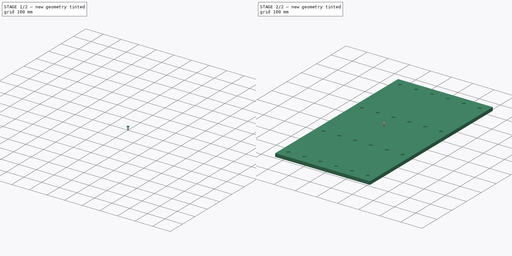
[diagram: build sequence overview — one tinted view per stage of 2, left to right]
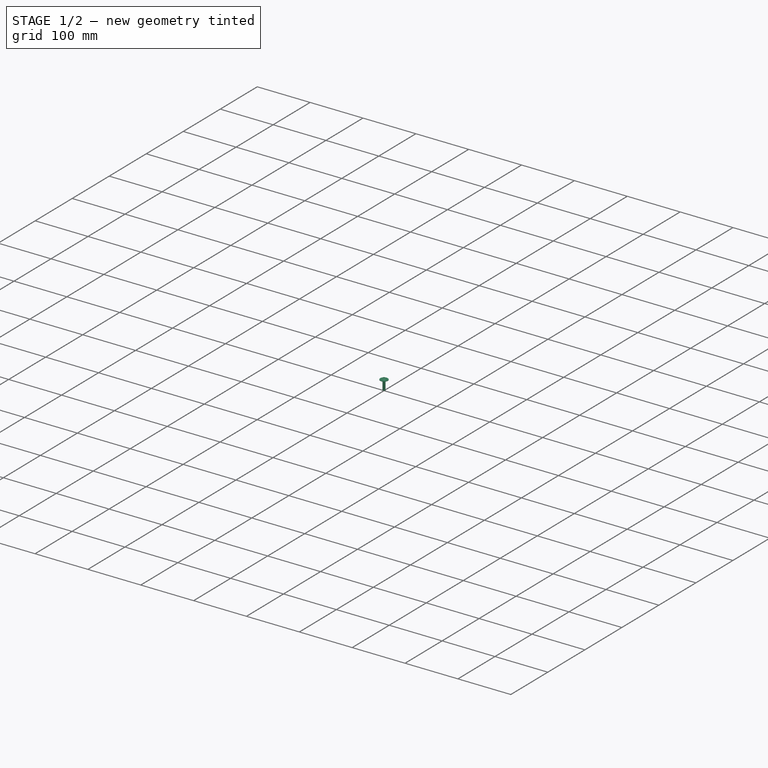
[diagram: stage 1 of 2 — iso view after this stage's code; geometry added in this stage tinted green]
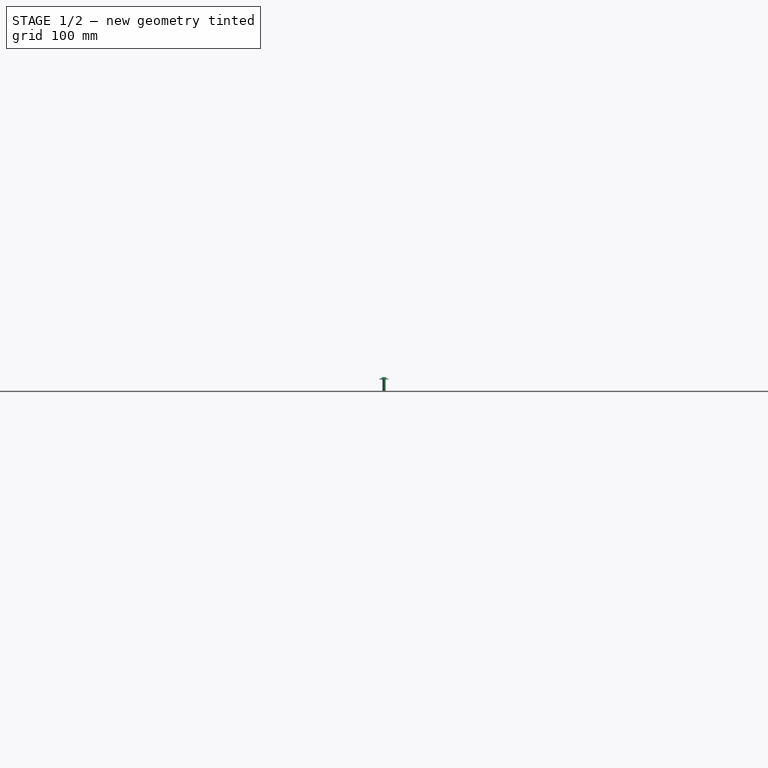
[diagram: stage 1 of 2 — front view after this stage's code; geometry added in this stage tinted green]
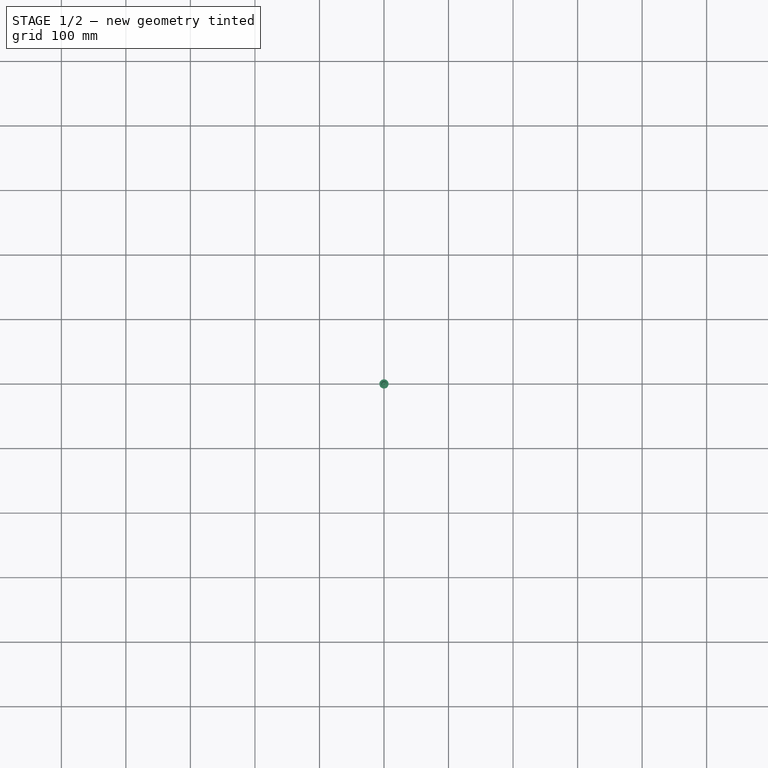
[diagram: stage 1 of 2 — top view after this stage's code; geometry added in this stage tinted green]
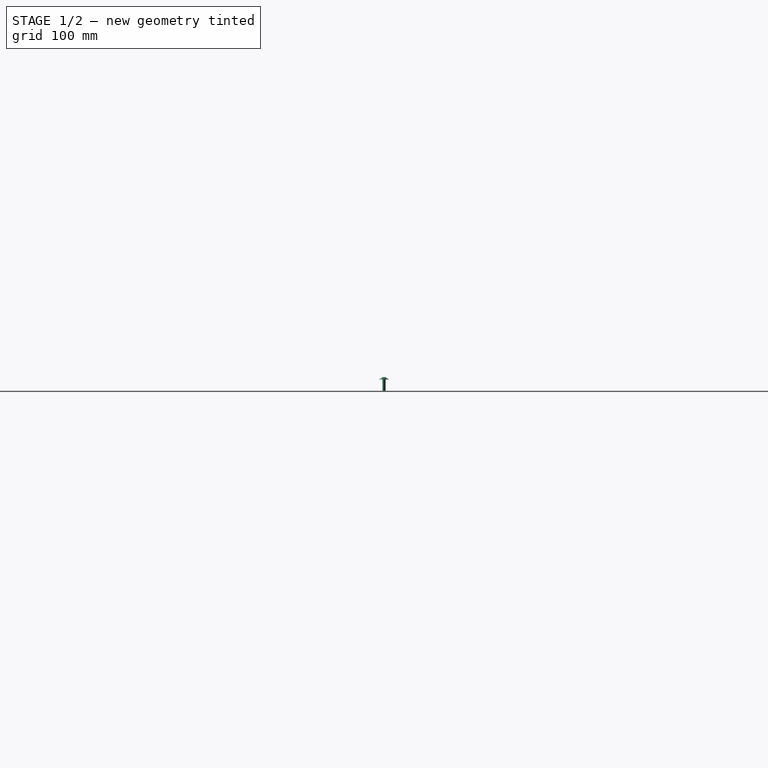
[diagram: stage 1 of 2 — right view after this stage's code; geometry added in this stage tinted green]
FCSTD DOCUMENT  (FreeCAD 2021.717R24301 +3842 (Git))
Label: Table
License: Creative Commons Attribution
LicenseURL: http://creativecommons.org/licenses/by/4.0/
objects: App::FeaturePython×83, Part::FeaturePython×58, App::LinkElement×24, Sketcher::SketchObject×2, App::Link×2, PartDesign::Pad×1, PartDesign::Hole×1, PartDesign::Body×1, App::DocumentObjectGroup×1
note: 65 computed .brp shape members not serialized (recipe doc carries the construction recipe); baked Part::Feature solids carry a one-line shape summary decoded from their .brp

FEATURE [PartDesign::Body] Body  label="Table plate PP"
  AutoGroupSolids = false
  ExportMode = 0
  Group = -> [Sketch,Pad,Sketch001,Hole]
  Origin = -> Origin
  Tip = -> Hole
  _ExportChildren = -> [Pad,Hole]
  _GroupVersion = 1
FEATURE [Part::FeaturePython] Screw  label="#10x3/4in-Screw"  # Fasteners workbench fastener (typed FeaturePython)
  Placement = pos=(0,0,47) rot=(0,0,1;0rad)
  diameter = 9
  invert = false
  length = 5
  lengthCustom = 19.05
  matchOuter = false
  offset = 0
  thread = false
  type = 4
FEATURE [Part::FeaturePython] Washer  label="#10-Washer"  # Fasteners workbench fastener (typed FeaturePython)
  Placement = pos=(0,0,45.984) rot=(0,0,1;0rad)
  diameter = 9
  invert = false
  matchOuter = false
  offset = 0
  type = 1
FEATURE [Part::FeaturePython] Parts001  # WARN: FeaturePython — macro-defined, semantics opaque (R4)
  Group = -> [Screw,Washer]
  GroupMode = 0
  _LinkVersion = 1
FEATURE [App::LinkElement] Link_i0
  LinkPlacement = pos=(-187.5,-376.9,-35.284) rot=(0,0,1;0rad)
  LinkedObject = -> Assembly001
  Placement = pos=(-187.5,-376.9,-35.284) rot=(0,0,1;0rad)
  _LinkVersion = 1
FEATURE [App::LinkElement] Link_i1
  LinkPlacement = pos=(-112.5,-376.9,-35.284) rot=(0,0,1;0rad)
  LinkedObject = -> Assembly001
  Placement = pos=(-112.5,-376.9,-35.284) rot=(0,0,1;0rad)
  _LinkVersion = 1
FEATURE [App::LinkElement] Link_i2
  LinkPlacement = pos=(-37.5,-376.9,-35.284) rot=(0,0,1;0rad)
  LinkedObject = -> Assembly001
  Placement = pos=(-37.5,-376.9,-35.284) rot=(0,0,1;0rad)
  _LinkVersion = 1
FEATURE [App::LinkElement] Link_i3
  LinkPlacement = pos=(37.5,-376.9,-35.284) rot=(0,0,1;0rad)
  LinkedObject = -> Assembly001
  Placement = pos=(37.5,-376.9,-35.284) rot=(0,0,1;0rad)
  _LinkVersion = 1
FEATURE [App::LinkElement] Link_i4
  LinkPlacement = pos=(112.5,-376.9,-35.284) rot=(0,0,1;0rad)
  LinkedObject = -> Assembly001
  Placement = pos=(112.5,-376.9,-35.284) rot=(0,0,1;0rad)
  _LinkVersion = 1
FEATURE [App::LinkElement] Link_i5
  LinkPlacement = pos=(187.5,-376.9,-35.284) rot=(0,0,1;0rad)
  LinkedObject = -> Assembly001
  Placement = pos=(187.5,-376.9,-35.284) rot=(0,0,1;0rad)
  _LinkVersion = 1
FEATURE [App::LinkElement] Link_i6
  LinkPlacement = pos=(-187.5,-142.57,-35.284) rot=(0,0,1;0rad)
  LinkedObject = -> Assembly001
  Placement = pos=(-187.5,-142.57,-35.284) rot=(0,0,1;0rad)
  _LinkVersion = 1
FEATURE [App::LinkElement] Link_i7
  LinkPlacement = pos=(-112.5,-142.57,-35.284) rot=(0,0,1;0rad)
  LinkedObject = -> Assembly001
  Placement = pos=(-112.5,-142.57,-35.284) rot=(0,0,1;0rad)
  _LinkVersion = 1
FEATURE [App::LinkElement] Link_i8
  LinkPlacement = pos=(-37.5,-142.57,-35.284) rot=(0,0,1;0rad)
  LinkedObject = -> Assembly001
  Placement = pos=(-37.5,-142.57,-35.284) rot=(0,0,1;0rad)
  _LinkVersion = 1
FEATURE [App::LinkElement] Link_i9
  LinkPlacement = pos=(37.5,-142.57,-35.284) rot=(0,0,1;0rad)
  LinkedObject = -> Assembly001
  Placement = pos=(37.5,-142.57,-35.284) rot=(0,0,1;0rad)
  _LinkVersion = 1
FEATURE [App::LinkElement] Link_i10
  LinkPlacement = pos=(112.5,-142.57,-35.284) rot=(0,0,1;0rad)
  LinkedObject = -> Assembly001
  Placement = pos=(112.5,-142.57,-35.284) rot=(0,0,1;0rad)
  _LinkVersion = 1
FEATURE [App::LinkElement] Link_i11
  LinkPlacement = pos=(187.5,-142.57,-35.284) rot=(0,0,1;0rad)
  LinkedObject = -> Assembly001
  Placement = pos=(187.5,-142.57,-35.284) rot=(0,0,1;0rad)
  _LinkVersion = 1
FEATURE [App::LinkElement] Link_i12
  LinkPlacement = pos=(-187.5,117.165,-35.284) rot=(0,0,1;0rad)
  LinkedObject = -> Assembly001
  Placement = pos=(-187.5,117.165,-35.284) rot=(0,0,1;0rad)
  _LinkVersion = 1
FEATURE [App::LinkElement] Link_i13
  LinkPlacement = pos=(-112.5,117.165,-35.284) rot=(0,0,1;0rad)
  LinkedObject = -> Assembly001
  Placement = pos=(-112.5,117.165,-35.284) rot=(0,0,1;0rad)
  _LinkVersion = 1
FEATURE [App::LinkElement] Link_i14
  LinkPlacement = pos=(-37.5,117.165,-35.284) rot=(0,0,1;0rad)
  LinkedObject = -> Assembly001
  Placement = pos=(-37.5,117.165,-35.284) rot=(0,0,1;0rad)
  _LinkVersion = 1
FEATURE [App::LinkElement] Link_i15
  LinkPlacement = pos=(37.5,117.165,-35.284) rot=(0,0,1;0rad)
  LinkedObject = -> Assembly001
  Placement = pos=(37.5,117.165,-35.284) rot=(0,0,1;0rad)
  _LinkVersion = 1
FEATURE [App::LinkElement] Link_i16
  LinkPlacement = pos=(112.5,117.165,-35.284) rot=(0,0,1;0rad)
  LinkedObject = -> Assembly001
  Placement = pos=(112.5,117.165,-35.284) rot=(0,0,1;0rad)
  _LinkVersion = 1
FEATURE [App::LinkElement] Link_i17
  LinkPlacement = pos=(187.5,117.165,-35.284) rot=(0,0,1;0rad)
  LinkedObject = -> Assembly001
  Placement = pos=(187.5,117.165,-35.284) rot=(0,0,1;0rad)
  _LinkVersion = 1
FEATURE [App::LinkElement] Link_i18
  LinkPlacement = pos=(-187.5,376.9,-35.284) rot=(0,0,1;0rad)
  LinkedObject = -> Assembly001
  Placement = pos=(-187.5,376.9,-35.284) rot=(0,0,1;0rad)
  _LinkVersion = 1
FEATURE [App::LinkElement] Link_i19
  LinkPlacement = pos=(-112.5,376.9,-35.284) rot=(0,0,1;0rad)
  LinkedObject = -> Assembly001
  Placement = pos=(-112.5,376.9,-35.284) rot=(0,0,1;0rad)
  _LinkVersion = 1
FEATURE [App::LinkElement] Link_i20
  LinkPlacement = pos=(-37.5,376.9,-35.284) rot=(0,0,1;0rad)
  LinkedObject = -> Assembly001
  Placement = pos=(-37.5,376.9,-35.284) rot=(0,0,1;0rad)
  _LinkVersion = 1
FEATURE [App::LinkElement] Link_i21
  LinkPlacement = pos=(37.5,376.9,-35.284) rot=(0,0,1;0rad)
  LinkedObject = -> Assembly001
  Placement = pos=(37.5,376.9,-35.284) rot=(0,0,1;0rad)
  _LinkVersion = 1
FEATURE [App::LinkElement] Link_i22
  LinkPlacement = pos=(112.5,376.9,-35.284) rot=(0,0,1;0rad)
  LinkedObject = -> Assembly001
  Placement = pos=(112.5,376.9,-35.284) rot=(0,0,1;0rad)
  _LinkVersion = 1
FEATURE [App::LinkElement] Link_i23
  LinkPlacement = pos=(187.5,376.9,-35.284) rot=(0,0,1;0rad)
  LinkedObject = -> Assembly001
  Placement = pos=(187.5,376.9,-35.284) rot=(0,0,1;0rad)
  _LinkVersion = 1
FEATURE [App::Link] Link  label="10x3/4 screw and washer 24 ct"
  AutoLinkLabel = true
  AutoPlacement = true
  ElementCount = 24
  ElementList = -> [Link_i0,Link_i1,Link_i2,Link_i3,Link_i4,Link_i5,Link_i6,Link_i7,Link_i8,Link_i9,Link_i10,Link_i11,Link_i12,Link_i13,Link_i14,Link_i15,Link_i16,Link_i17,Link_i18,Link_i19,Link_i20,Link_i21,Link_i22,Link_i23]
  LinkedObject = -> Assembly001
  SyncGroupVisibility = false
  _LinkVersion = 1
FEATURE [Part::FeaturePython] Parts  # WARN: FeaturePython — macro-defined, semantics opaque (R4)
  Group = -> [Link001,Link]
  GroupMode = 0
  _LinkVersion = 1
FEATURE [Part::FeaturePython] Assembly  label="PP Table Assembly"  # WARN: FeaturePython — macro-defined, semantics opaque (R4)
  AutoRelax = true
  BuildShape = 0
  Freeze = false
  Group = -> [Constraints,Elements,Parts]
  Verbose = false
  _LinkVersion = 1
  _SolverType = 1
  _Version = 1
FEATURE [App::FeaturePython] Constraints  # WARN: FeaturePython — macro-defined, semantics opaque (R4)
  Group = -> [Constraint,Constraint003,Constraint004,Constraint005,Constraint006,Constraint007,Constraint008,Constraint009,Constraint010,Constraint011,Constraint012,Constraint013,Constraint014,Constraint015,Constraint016,Constraint017,Constraint018,Constraint019,Constraint020,Constraint021,Constraint022,Constraint023,Constraint024,Constraint025,Constraint026]
  _LinkVersion = 1
  _Version = 1
FEATURE [App::FeaturePython] Elements  # WARN: FeaturePython — macro-defined, semantics opaque (R4)
  Group = -> [Element,_Element002,_Element003,_Element004,_Element005,_Element006,_Element007,_Element008,_Element009,_Element010,_Element011,_Element012,_Element013,_Element014,_Element015,_Element016,_Element017,_Element018,_Element019,_Element020,_Element021,_Element022,_Element023,_Element024,_Element025,_Element026,_Element027,_Element028,_Element029,_Element030,_Element031,_Element032,_Element033,+16 more]
  _LinkVersion = 1
FEATURE [Part::FeaturePython] Element  label="frame mate"  # link proxy (typed FeaturePython)
  Detach = false
  LinkTransform = true
  LinkedObject = -> Link001 [Hole.Edge12]
  _LinkVersion = 1
  _Parent = -> Elements
FEATURE [App::FeaturePython] Constraint  label="Locked"  # WARN: FeaturePython — macro-defined, semantics opaque (R4)
  Disabled = false
  Group = -> [ElementLink]
  _ConstraintType = 0
  _LinkVersion = 1
  _Parent = -> Constraints
FEATURE [App::FeaturePython] ElementLink  label="frame mate"  # link proxy (typed FeaturePython)
  LinkTransform = true
  LinkedObject = -> Element
  _LinkVersion = 1
  _Parent = -> Constraint
FEATURE [App::DocumentObjectGroup] Group  label="Components"
  ExportMode = 1
  Group = -> [Body,Assembly001]
  _GroupVersion = 1
FEATURE [Part::FeaturePython] Assembly001  label="10x3/4 screw and washer Assembly"  # WARN: FeaturePython — macro-defined, semantics opaque (R4)
  AutoRelax = true
  BuildShape = 0
  Freeze = false
  Group = -> [Constraints001,Elements001,Parts001]
  Verbose = false
  _LinkVersion = 1
  _SolverType = 1
  _Version = 1
FEATURE [App::FeaturePython] Constraints001  # WARN: FeaturePython — macro-defined, semantics opaque (R4)
  Group = -> [Constraint001,Constraint002]
  _LinkVersion = 1
  _Version = 1
FEATURE [App::FeaturePython] Elements001  # WARN: FeaturePython — macro-defined, semantics opaque (R4)
  Group = -> [_Element,_Element001,Element001]
  _LinkVersion = 1
FEATURE [App::FeaturePython] Constraint001  label="Locked001"  # WARN: FeaturePython — macro-defined, semantics opaque (R4)
  Disabled = false
  Group = -> [ElementLink001]
  _ConstraintType = 0
  _LinkVersion = 1
  _Parent = -> Constraints001
FEATURE [App::FeaturePython] ElementLink001  label="_Element"  # link proxy (typed FeaturePython)
  LinkTransform = true
  LinkedObject = -> _Element
  _LinkVersion = 1
  _Parent = -> Constraint001
FEATURE [Part::FeaturePython] _Element  # link proxy (typed FeaturePython)
  Detach = false
  LinkTransform = true
  LinkedObject = -> Screw [Edge4]
  _LinkVersion = 1
  _Parent = -> Elements001
FEATURE [App::FeaturePython] Constraint002  label="Attachment"  # WARN: FeaturePython — macro-defined, semantics opaque (R4)
  Cascade = false
  Disabled = false
  Group = -> [ElementLink002,ElementLink003]
  Multiply = false
  _ConstraintType = 45
  _LinkVersion = 1
  _Parent = -> Constraints001
FEATURE [App::FeaturePython] ElementLink002  label="_Element001"  # link proxy (typed FeaturePython)
  LinkTransform = true
  LinkedObject = -> _Element001
  _LinkVersion = 1
  _Parent = -> Constraint002
FEATURE [Part::FeaturePython] _Element001  # link proxy (typed FeaturePython)
  Detach = false
  LinkTransform = true
  LinkedObject = -> Washer [Edge1]
  _LinkVersion = 1
  _Parent = -> Elements001
FEATURE [App::FeaturePython] ElementLink003  label="_Element"  # link proxy (typed FeaturePython)
  LinkTransform = true
  LinkedObject = -> _Element
  _LinkVersion = 1
  _Parent = -> Constraint002
FEATURE [Part::FeaturePython] Element001  label="mate"  # link proxy (typed FeaturePython)
  Detach = false
  LinkTransform = true
  LinkedObject = -> Washer [Edge5]
  _LinkVersion = 1
  _Parent = -> Elements001
FEATURE [App::FeaturePython] Constraint003  label="Attachment001"  # WARN: FeaturePython — macro-defined, semantics opaque (R4)
  Cascade = false
  Disabled = false
  Group = -> [ElementLink004,ElementLink005]
  Multiply = false
  _ConstraintType = 45
  _LinkVersion = 1
  _Parent = -> Constraints
FEATURE [App::FeaturePython] ElementLink004  label="_Element002"  # link proxy (typed FeaturePython)
  LinkTransform = true
  LinkedObject = -> _Element002
  _LinkVersion = 1
  _Parent = -> Constraint003
FEATURE [Part::FeaturePython] _Element002  # link proxy (typed FeaturePython)
  Detach = false
  LinkTransform = true
  LinkedObject = -> Link [Link_i0.1.$mate.]
  _LinkVersion = 1
  _Parent = -> Elements
FEATURE [App::FeaturePython] ElementLink005  label="_Element003"  # link proxy (typed FeaturePython)
  LinkTransform = true
  LinkedObject = -> _Element003
  _LinkVersion = 1
  _Parent = -> Constraint003
FEATURE [Part::FeaturePython] _Element003  # link proxy (typed FeaturePython)
  Detach = false
  LinkTransform = true
  LinkedObject = -> Link001 [Hole.Edge109]
  _LinkVersion = 1
  _Parent = -> Elements
FEATURE [App::FeaturePython] Constraint004  label="Attachment002"  # WARN: FeaturePython — macro-defined, semantics opaque (R4)
  Cascade = false
  Disabled = false
  Group = -> [ElementLink006,ElementLink007]
  Multiply = false
  _ConstraintType = 45
  _LinkVersion = 1
  _Parent = -> Constraints
FEATURE [App::FeaturePython] ElementLink006  label="_Element004"  # link proxy (typed FeaturePython)
  LinkTransform = true
  LinkedObject = -> _Element004
  _LinkVersion = 1
  _Parent = -> Constraint004
FEATURE [Part::FeaturePython] _Element004  # link proxy (typed FeaturePython)
  Detach = false
  LinkTransform = true
  LinkedObject = -> Link [Link_i1.1.$mate.]
  _LinkVersion = 1
  _Parent = -> Elements
FEATURE [App::FeaturePython] ElementLink007  label="_Element005"  # link proxy (typed FeaturePython)
  LinkTransform = true
  LinkedObject = -> _Element005
  _LinkVersion = 1
  _Parent = -> Constraint004
FEATURE [Part::FeaturePython] _Element005  # link proxy (typed FeaturePython)
  Detach = false
  LinkTransform = true
  LinkedObject = -> Link001 [Hole.Edge111]
  _LinkVersion = 1
  _Parent = -> Elements
FEATURE [App::FeaturePython] Constraint005  label="Attachment003"  # WARN: FeaturePython — macro-defined, semantics opaque (R4)
  Cascade = false
  Disabled = false
  Group = -> [ElementLink008,ElementLink009]
  Multiply = false
  _ConstraintType = 45
  _LinkVersion = 1
  _Parent = -> Constraints
FEATURE [App::FeaturePython] ElementLink008  label="_Element006"  # link proxy (typed FeaturePython)
  LinkTransform = true
  LinkedObject = -> _Element006
  _LinkVersion = 1
  _Parent = -> Constraint005
FEATURE [Part::FeaturePython] _Element006  # link proxy (typed FeaturePython)
  Detach = false
  LinkTransform = true
  LinkedObject = -> Link [Link_i2.1.$mate.]
  _LinkVersion = 1
  _Parent = -> Elements
FEATURE [App::FeaturePython] ElementLink009  label="_Element007"  # link proxy (typed FeaturePython)
  LinkTransform = true
  LinkedObject = -> _Element007
  _LinkVersion = 1
  _Parent = -> Constraint005
FEATURE [Part::FeaturePython] _Element007  # link proxy (typed FeaturePython)
  Detach = false
  LinkTransform = true
  LinkedObject = -> Link001 [Hole.Edge113]
  _LinkVersion = 1
  _Parent = -> Elements
FEATURE [App::FeaturePython] Constraint006  label="Attachment004"  # WARN: FeaturePython — macro-defined, semantics opaque (R4)
  Cascade = false
  Disabled = false
  Group = -> [ElementLink010,ElementLink011]
  Multiply = false
  _ConstraintType = 45
  _LinkVersion = 1
  _Parent = -> Constraints
FEATURE [App::FeaturePython] ElementLink010  label="_Element008"  # link proxy (typed FeaturePython)
  LinkTransform = true
  LinkedObject = -> _Element008
  _LinkVersion = 1
  _Parent = -> Constraint006
FEATURE [Part::FeaturePython] _Element008  # link proxy (typed FeaturePython)
  Detach = false
  LinkTransform = true
  LinkedObject = -> Link [Link_i3.1.$mate.]
  _LinkVersion = 1
  _Parent = -> Elements
FEATURE [App::FeaturePython] ElementLink011  label="_Element009"  # link proxy (typed FeaturePython)
  LinkTransform = true
  LinkedObject = -> _Element009
  _LinkVersion = 1
  _Parent = -> Constraint006
FEATURE [Part::FeaturePython] _Element009  # link proxy (typed FeaturePython)
  Detach = false
  LinkTransform = true
  LinkedObject = -> Link001 [Hole.Edge121]
  _LinkVersion = 1
  _Parent = -> Elements
FEATURE [App::FeaturePython] Constraint007  label="Attachment005"  # WARN: FeaturePython — macro-defined, semantics opaque (R4)
  Cascade = false
  Disabled = false
  Group = -> [ElementLink012,ElementLink013]
  Multiply = false
  _ConstraintType = 45
  _LinkVersion = 1
  _Parent = -> Constraints
FEATURE [App::FeaturePython] ElementLink012  label="_Element010"  # link proxy (typed FeaturePython)
  LinkTransform = true
  LinkedObject = -> _Element010
  _LinkVersion = 1
  _Parent = -> Constraint007
FEATURE [Part::FeaturePython] _Element010  # link proxy (typed FeaturePython)
  Detach = false
  LinkTransform = true
  LinkedObject = -> Link [Link_i4.1.$mate.]
  _LinkVersion = 1
  _Parent = -> Elements
FEATURE [App::FeaturePython] ElementLink013  label="_Element011"  # link proxy (typed FeaturePython)
  LinkTransform = true
  LinkedObject = -> _Element011
  _LinkVersion = 1
  _Parent = -> Constraint007
FEATURE [Part::FeaturePython] _Element011  # link proxy (typed FeaturePython)
  Detach = false
  LinkTransform = true
  LinkedObject = -> Link001 [Hole.Edge123]
  _LinkVersion = 1
  _Parent = -> Elements
FEATURE [App::FeaturePython] Constraint008  label="Attachment006"  # WARN: FeaturePython — macro-defined, semantics opaque (R4)
  Cascade = false
  Disabled = false
  Group = -> [ElementLink014,ElementLink015]
  Multiply = false
  _ConstraintType = 45
  _LinkVersion = 1
  _Parent = -> Constraints
FEATURE [App::FeaturePython] ElementLink014  label="_Element012"  # link proxy (typed FeaturePython)
  LinkTransform = true
  LinkedObject = -> _Element012
  _LinkVersion = 1
  _Parent = -> Constraint008
FEATURE [Part::FeaturePython] _Element012  # link proxy (typed FeaturePython)
  Detach = false
  LinkTransform = true
  LinkedObject = -> Link [Link_i5.1.$mate.]
  _LinkVersion = 1
  _Parent = -> Elements
FEATURE [App::FeaturePython] ElementLink015  label="_Element013"  # link proxy (typed FeaturePython)
  LinkTransform = true
  LinkedObject = -> _Element013
  _LinkVersion = 1
  _Parent = -> Constraint008
FEATURE [Part::FeaturePython] _Element013  # link proxy (typed FeaturePython)
  Detach = false
  LinkTransform = true
  LinkedObject = -> Link001 [Hole.Edge125]
  _LinkVersion = 1
  _Parent = -> Elements
FEATURE [App::FeaturePython] Constraint009  label="Attachment007"  # WARN: FeaturePython — macro-defined, semantics opaque (R4)
  Cascade = false
  Disabled = false
  Group = -> [ElementLink016,ElementLink017]
  Multiply = false
  _ConstraintType = 45
  _LinkVersion = 1
  _Parent = -> Constraints
FEATURE [App::FeaturePython] ElementLink016  label="_Element014"  # link proxy (typed FeaturePython)
  LinkTransform = true
  LinkedObject = -> _Element014
  _LinkVersion = 1
  _Parent = -> Constraint009
FEATURE [Part::FeaturePython] _Element014  # link proxy (typed FeaturePython)
  Detach = false
  LinkTransform = true
  LinkedObject = -> Link [Link_i6.1.$mate.]
  _LinkVersion = 1
  _Parent = -> Elements
FEATURE [App::FeaturePython] ElementLink017  label="_Element015"  # link proxy (typed FeaturePython)
  LinkTransform = true
  LinkedObject = -> _Element015
  _LinkVersion = 1
  _Parent = -> Constraint009
FEATURE [Part::FeaturePython] _Element015  # link proxy (typed FeaturePython)
  Detach = false
  LinkTransform = true
  LinkedObject = -> Link001 [Hole.Edge115]
  _LinkVersion = 1
  _Parent = -> Elements
FEATURE [App::FeaturePython] Constraint010  label="Attachment008"  # WARN: FeaturePython — macro-defined, semantics opaque (R4)
  Cascade = false
  Disabled = false
  Group = -> [ElementLink018,ElementLink019]
  Multiply = false
  _ConstraintType = 45
  _LinkVersion = 1
  _Parent = -> Constraints
FEATURE [App::FeaturePython] ElementLink018  label="_Element016"  # link proxy (typed FeaturePython)
  LinkTransform = true
  LinkedObject = -> _Element016
  _LinkVersion = 1
  _Parent = -> Constraint010
FEATURE [Part::FeaturePython] _Element016  # link proxy (typed FeaturePython)
  Detach = false
  LinkTransform = true
  LinkedObject = -> Link [Link_i7.1.$mate.]
  _LinkVersion = 1
  _Parent = -> Elements
FEATURE [App::FeaturePython] ElementLink019  label="_Element017"  # link proxy (typed FeaturePython)
  LinkTransform = true
  LinkedObject = -> _Element017
  _LinkVersion = 1
  _Parent = -> Constraint010
FEATURE [Part::FeaturePython] _Element017  # link proxy (typed FeaturePython)
  Detach = false
  LinkTransform = true
  LinkedObject = -> Link001 [Hole.Edge117]
  _LinkVersion = 1
  _Parent = -> Elements
FEATURE [App::FeaturePython] Constraint011  label="Attachment009"  # WARN: FeaturePython — macro-defined, semantics opaque (R4)
  Cascade = false
  Disabled = false
  Group = -> [ElementLink020,ElementLink021]
  Multiply = false
  _ConstraintType = 45
  _LinkVersion = 1
  _Parent = -> Constraints
FEATURE [App::FeaturePython] ElementLink020  label="_Element018"  # link proxy (typed FeaturePython)
  LinkTransform = true
  LinkedObject = -> _Element018
  _LinkVersion = 1
  _Parent = -> Constraint011
FEATURE [Part::FeaturePython] _Element018  # link proxy (typed FeaturePython)
  Detach = false
  LinkTransform = true
  LinkedObject = -> Link [Link_i8.1.$mate.]
  _LinkVersion = 1
  _Parent = -> Elements
FEATURE [App::FeaturePython] ElementLink021  label="_Element019"  # link proxy (typed FeaturePython)
  LinkTransform = true
  LinkedObject = -> _Element019
  _LinkVersion = 1
  _Parent = -> Constraint011
FEATURE [Part::FeaturePython] _Element019  # link proxy (typed FeaturePython)
  Detach = false
  LinkTransform = true
  LinkedObject = -> Link001 [Hole.Edge119]
  _LinkVersion = 1
  _Parent = -> Elements
FEATURE [App::FeaturePython] Constraint012  label="Attachment010"  # WARN: FeaturePython — macro-defined, semantics opaque (R4)
  Cascade = false
  Disabled = false
  Group = -> [ElementLink022,ElementLink023]
  Multiply = false
  _ConstraintType = 45
  _LinkVersion = 1
  _Parent = -> Constraints
FEATURE [App::FeaturePython] ElementLink022  label="_Element020"  # link proxy (typed FeaturePython)
  LinkTransform = true
  LinkedObject = -> _Element020
  _LinkVersion = 1
  _Parent = -> Constraint012
FEATURE [Part::FeaturePython] _Element020  # link proxy (typed FeaturePython)
  Detach = false
  LinkTransform = true
  LinkedObject = -> Link001 [Hole.Edge127]
  _LinkVersion = 1
  _Parent = -> Elements
FEATURE [App::FeaturePython] ElementLink023  label="_Element021"  # link proxy (typed FeaturePython)
  LinkTransform = true
  LinkedObject = -> _Element021
  _LinkVersion = 1
  _Parent = -> Constraint012
FEATURE [Part::FeaturePython] _Element021  # link proxy (typed FeaturePython)
  Detach = false
  LinkTransform = true
  LinkedObject = -> Link [Link_i9.1.$mate.]
  _LinkVersion = 1
  _Parent = -> Elements
FEATURE [App::FeaturePython] Constraint013  label="Attachment011"  # WARN: FeaturePython — macro-defined, semantics opaque (R4)
  Cascade = false
  Disabled = false
  Group = -> [ElementLink024,ElementLink025]
  Multiply = false
  _ConstraintType = 45
  _LinkVersion = 1
  _Parent = -> Constraints
FEATURE [App::FeaturePython] ElementLink024  label="_Element022"  # link proxy (typed FeaturePython)
  LinkTransform = true
  LinkedObject = -> _Element022
  _LinkVersion = 1
  _Parent = -> Constraint013
FEATURE [Part::FeaturePython] _Element022  # link proxy (typed FeaturePython)
  Detach = false
  LinkTransform = true
  LinkedObject = -> Link001 [Hole.Edge129]
  _LinkVersion = 1
  _Parent = -> Elements
FEATURE [App::FeaturePython] ElementLink025  label="_Element023"  # link proxy (typed FeaturePython)
  LinkTransform = true
  LinkedObject = -> _Element023
  _LinkVersion = 1
  _Parent = -> Constraint013
FEATURE [Part::FeaturePython] _Element023  # link proxy (typed FeaturePython)
  Detach = false
  LinkTransform = true
  LinkedObject = -> Link [Link_i10.1.$mate.]
  _LinkVersion = 1
  _Parent = -> Elements
FEATURE [App::FeaturePython] Constraint014  label="Attachment012"  # WARN: FeaturePython — macro-defined, semantics opaque (R4)
  Cascade = false
  Disabled = false
  Group = -> [ElementLink026,ElementLink027]
  Multiply = false
  _ConstraintType = 45
  _LinkVersion = 1
  _Parent = -> Constraints
FEATURE [App::FeaturePython] ElementLink026  label="_Element024"  # link proxy (typed FeaturePython)
  LinkTransform = true
  LinkedObject = -> _Element024
  _LinkVersion = 1
  _Parent = -> Constraint014
FEATURE [Part::FeaturePython] _Element024  # link proxy (typed FeaturePython)
  Detach = false
  LinkTransform = true
  LinkedObject = -> Link001 [Hole.Edge131]
  _LinkVersion = 1
  _Parent = -> Elements
FEATURE [App::FeaturePython] ElementLink027  label="_Element025"  # link proxy (typed FeaturePython)
  LinkTransform = true
  LinkedObject = -> _Element025
  _LinkVersion = 1
  _Parent = -> Constraint014
FEATURE [Part::FeaturePython] _Element025  # link proxy (typed FeaturePython)
  Detach = false
  LinkTransform = true
  LinkedObject = -> Link [Link_i11.1.$mate.]
  _LinkVersion = 1
  _Parent = -> Elements
FEATURE [App::FeaturePython] Constraint015  label="Attachment013"  # WARN: FeaturePython — macro-defined, semantics opaque (R4)
  Cascade = false
  Disabled = false
  Group = -> [ElementLink028,ElementLink029]
  Multiply = false
  _ConstraintType = 45
  _LinkVersion = 1
  _Parent = -> Constraints
FEATURE [App::FeaturePython] ElementLink028  label="_Element026"  # link proxy (typed FeaturePython)
  LinkTransform = true
  LinkedObject = -> _Element026
  _LinkVersion = 1
  _Parent = -> Constraint015
FEATURE [Part::FeaturePython] _Element026  # link proxy (typed FeaturePython)
  Detach = false
  LinkTransform = true
  LinkedObject = -> Link001 [Hole.Edge133]
  _LinkVersion = 1
  _Parent = -> Elements
FEATURE [App::FeaturePython] ElementLink029  label="_Element027"  # link proxy (typed FeaturePython)
  LinkTransform = true
  LinkedObject = -> _Element027
  _LinkVersion = 1
  _Parent = -> Constraint015
FEATURE [Part::FeaturePython] _Element027  # link proxy (typed FeaturePython)
  Detach = false
  LinkTransform = true
  LinkedObject = -> Link [Link_i12.1.$mate.]
  _LinkVersion = 1
  _Parent = -> Elements
FEATURE [App::FeaturePython] Constraint016  label="Attachment014"  # WARN: FeaturePython — macro-defined, semantics opaque (R4)
  Cascade = false
  Disabled = false
  Group = -> [ElementLink030,ElementLink031]
  Multiply = false
  _ConstraintType = 45
  _LinkVersion = 1
  _Parent = -> Constraints
FEATURE [App::FeaturePython] ElementLink030  label="_Element028"  # link proxy (typed FeaturePython)
  LinkTransform = true
  LinkedObject = -> _Element028
  _LinkVersion = 1
  _Parent = -> Constraint016
FEATURE [Part::FeaturePython] _Element028  # link proxy (typed FeaturePython)
  Detach = false
  LinkTransform = true
  LinkedObject = -> Link001 [Hole.Edge135]
  _LinkVersion = 1
  _Parent = -> Elements
FEATURE [App::FeaturePython] ElementLink031  label="_Element029"  # link proxy (typed FeaturePython)
  LinkTransform = true
  LinkedObject = -> _Element029
  _LinkVersion = 1
  _Parent = -> Constraint016
FEATURE [Part::FeaturePython] _Element029  # link proxy (typed FeaturePython)
  Detach = false
  LinkTransform = true
  LinkedObject = -> Link [Link_i13.1.$mate.]
  _LinkVersion = 1
  _Parent = -> Elements
FEATURE [App::FeaturePython] Constraint017  label="Attachment015"  # WARN: FeaturePython — macro-defined, semantics opaque (R4)
  Cascade = false
  Disabled = false
  Group = -> [ElementLink032,ElementLink033]
  Multiply = false
  _ConstraintType = 45
  _LinkVersion = 1
  _Parent = -> Constraints
FEATURE [App::FeaturePython] ElementLink032  label="_Element030"  # link proxy (typed FeaturePython)
  LinkTransform = true
  LinkedObject = -> _Element030
  _LinkVersion = 1
  _Parent = -> Constraint017
FEATURE [Part::FeaturePython] _Element030  # link proxy (typed FeaturePython)
  Detach = false
  LinkTransform = true
  LinkedObject = -> Link001 [Hole.Edge137]
  _LinkVersion = 1
  _Parent = -> Elements
FEATURE [App::FeaturePython] ElementLink033  label="_Element031"  # link proxy (typed FeaturePython)
  LinkTransform = true
  LinkedObject = -> _Element031
  _LinkVersion = 1
  _Parent = -> Constraint017
FEATURE [Part::FeaturePython] _Element031  # link proxy (typed FeaturePython)
  Detach = false
  LinkTransform = true
  LinkedObject = -> Link [Link_i14.1.$mate.]
  _LinkVersion = 1
  _Parent = -> Elements
FEATURE [App::FeaturePython] Constraint018  label="Attachment016"  # WARN: FeaturePython — macro-defined, semantics opaque (R4)
  Cascade = false
  Disabled = false
  Group = -> [ElementLink034,ElementLink035]
  Multiply = false
  _ConstraintType = 45
  _LinkVersion = 1
  _Parent = -> Constraints
FEATURE [App::FeaturePython] ElementLink034  label="_Element032"  # link proxy (typed FeaturePython)
  LinkTransform = true
  LinkedObject = -> _Element032
  _LinkVersion = 1
  _Parent = -> Constraint018
FEATURE [Part::FeaturePython] _Element032  # link proxy (typed FeaturePython)
  Detach = false
  LinkTransform = true
  LinkedObject = -> Link001 [Hole.Edge145]
  _LinkVersion = 1
  _Parent = -> Elements
FEATURE [App::FeaturePython] ElementLink035  label="_Element033"  # link proxy (typed FeaturePython)
  LinkTransform = true
  LinkedObject = -> _Element033
  _LinkVersion = 1
  _Parent = -> Constraint018
FEATURE [Part::FeaturePython] _Element033  # link proxy (typed FeaturePython)
  Detach = false
  LinkTransform = true
  LinkedObject = -> Link [Link_i15.1.$mate.]
  _LinkVersion = 1
  _Parent = -> Elements
FEATURE [App::FeaturePython] Constraint019  label="Attachment017"  # WARN: FeaturePython — macro-defined, semantics opaque (R4)
  Cascade = false
  Disabled = false
  Group = -> [ElementLink036,ElementLink037]
  Multiply = false
  _ConstraintType = 45
  _LinkVersion = 1
  _Parent = -> Constraints
FEATURE [App::FeaturePython] ElementLink036  label="_Element034"  # link proxy (typed FeaturePython)
  LinkTransform = true
  LinkedObject = -> _Element034
  _LinkVersion = 1
  _Parent = -> Constraint019
FEATURE [Part::FeaturePython] _Element034  # link proxy (typed FeaturePython)
  Detach = false
  LinkTransform = true
  LinkedObject = -> Link001 [Hole.Edge147]
  _LinkVersion = 1
  _Parent = -> Elements
FEATURE [App::FeaturePython] ElementLink037  label="_Element035"  # link proxy (typed FeaturePython)
  LinkTransform = true
  LinkedObject = -> _Element035
  _LinkVersion = 1
  _Parent = -> Constraint019
FEATURE [Part::FeaturePython] _Element035  # link proxy (typed FeaturePython)
  Detach = false
  LinkTransform = true
  LinkedObject = -> Link [Link_i16.1.$mate.]
  _LinkVersion = 1
  _Parent = -> Elements
FEATURE [App::FeaturePython] Constraint020  label="Attachment018"  # WARN: FeaturePython — macro-defined, semantics opaque (R4)
  Cascade = false
  Disabled = false
  Group = -> [ElementLink038,ElementLink039]
  Multiply = false
  _ConstraintType = 45
  _LinkVersion = 1
  _Parent = -> Constraints
FEATURE [App::FeaturePython] ElementLink038  label="_Element036"  # link proxy (typed FeaturePython)
  LinkTransform = true
  LinkedObject = -> _Element036
  _LinkVersion = 1
  _Parent = -> Constraint020
FEATURE [Part::FeaturePython] _Element036  # link proxy (typed FeaturePython)
  Detach = false
  LinkTransform = true
  LinkedObject = -> Link001 [Hole.Edge149]
  _LinkVersion = 1
  _Parent = -> Elements
FEATURE [App::FeaturePython] ElementLink039  label="_Element037"  # link proxy (typed FeaturePython)
  LinkTransform = true
  LinkedObject = -> _Element037
  _LinkVersion = 1
  _Parent = -> Constraint020
FEATURE [Part::FeaturePython] _Element037  # link proxy (typed FeaturePython)
  Detach = false
  LinkTransform = true
  LinkedObject = -> Link [Link_i17.1.$mate.]
  _LinkVersion = 1
  _Parent = -> Elements
FEATURE [App::FeaturePython] Constraint021  label="Attachment019"  # WARN: FeaturePython — macro-defined, semantics opaque (R4)
  Cascade = false
  Disabled = false
  Group = -> [ElementLink040,ElementLink041]
  Multiply = false
  _ConstraintType = 45
  _LinkVersion = 1
  _Parent = -> Constraints
FEATURE [App::FeaturePython] ElementLink040  label="_Element038"  # link proxy (typed FeaturePython)
  LinkTransform = true
  LinkedObject = -> _Element038
  _LinkVersion = 1
  _Parent = -> Constraint021
FEATURE [Part::FeaturePython] _Element038  # link proxy (typed FeaturePython)
  Detach = false
  LinkTransform = true
  LinkedObject = -> Link001 [Hole.Edge139]
  _LinkVersion = 1
  _Parent = -> Elements
FEATURE [App::FeaturePython] ElementLink041  label="_Element039"  # link proxy (typed FeaturePython)
  LinkTransform = true
  LinkedObject = -> _Element039
  _LinkVersion = 1
  _Parent = -> Constraint021
FEATURE [Part::FeaturePython] _Element039  # link proxy (typed FeaturePython)
  Detach = false
  LinkTransform = true
  LinkedObject = -> Link [Link_i18.1.$mate.]
  _LinkVersion = 1
  _Parent = -> Elements
FEATURE [App::FeaturePython] Constraint022  label="Attachment020"  # WARN: FeaturePython — macro-defined, semantics opaque (R4)
  Cascade = false
  Disabled = false
  Group = -> [ElementLink042,ElementLink043]
  Multiply = false
  _ConstraintType = 45
  _LinkVersion = 1
  _Parent = -> Constraints
FEATURE [App::FeaturePython] ElementLink042  label="_Element040"  # link proxy (typed FeaturePython)
  LinkTransform = true
  LinkedObject = -> _Element040
  _LinkVersion = 1
  _Parent = -> Constraint022
FEATURE [Part::FeaturePython] _Element040  # link proxy (typed FeaturePython)
  Detach = false
  LinkTransform = true
  LinkedObject = -> Link001 [Hole.Edge141]
  _LinkVersion = 1
  _Parent = -> Elements
FEATURE [App::FeaturePython] ElementLink043  label="_Element041"  # link proxy (typed FeaturePython)
  LinkTransform = true
  LinkedObject = -> _Element041
  _LinkVersion = 1
  _Parent = -> Constraint022
FEATURE [Part::FeaturePython] _Element041  # link proxy (typed FeaturePython)
  Detach = false
  LinkTransform = true
  LinkedObject = -> Link [Link_i19.1.$mate.]
  _LinkVersion = 1
  _Parent = -> Elements
FEATURE [App::FeaturePython] Constraint023  label="Attachment021"  # WARN: FeaturePython — macro-defined, semantics opaque (R4)
  Cascade = false
  Disabled = false
  Group = -> [ElementLink044,ElementLink045]
  Multiply = false
  _ConstraintType = 45
  _LinkVersion = 1
  _Parent = -> Constraints
FEATURE [App::FeaturePython] ElementLink044  label="_Element042"  # link proxy (typed FeaturePython)
  LinkTransform = true
  LinkedObject = -> _Element042
  _LinkVersion = 1
  _Parent = -> Constraint023
FEATURE [Part::FeaturePython] _Element042  # link proxy (typed FeaturePython)
  Detach = false
  LinkTransform = true
  LinkedObject = -> Link001 [Hole.Edge143]
  _LinkVersion = 1
  _Parent = -> Elements
FEATURE [App::FeaturePython] ElementLink045  label="_Element043"  # link proxy (typed FeaturePython)
  LinkTransform = true
  LinkedObject = -> _Element043
  _LinkVersion = 1
  _Parent = -> Constraint023
FEATURE [Part::FeaturePython] _Element043  # link proxy (typed FeaturePython)
  Detach = false
  LinkTransform = true
  LinkedObject = -> Link [Link_i20.1.$mate.]
  _LinkVersion = 1
  _Parent = -> Elements
FEATURE [App::FeaturePython] Constraint024  label="Attachment022"  # WARN: FeaturePython — macro-defined, semantics opaque (R4)
  Cascade = false
  Disabled = false
  Group = -> [ElementLink046,ElementLink047]
  Multiply = false
  _ConstraintType = 45
  _LinkVersion = 1
  _Parent = -> Constraints
FEATURE [App::FeaturePython] ElementLink046  label="_Element044"  # link proxy (typed FeaturePython)
  LinkTransform = true
  LinkedObject = -> _Element044
  _LinkVersion = 1
  _Parent = -> Constraint024
FEATURE [Part::FeaturePython] _Element044  # link proxy (typed FeaturePython)
  Detach = false
  LinkTransform = true
  LinkedObject = -> Link001 [Hole.Edge151]
  _LinkVersion = 1
  _Parent = -> Elements
FEATURE [App::FeaturePython] ElementLink047  label="_Element045"  # link proxy (typed FeaturePython)
  LinkTransform = true
  LinkedObject = -> _Element045
  _LinkVersion = 1
  _Parent = -> Constraint024
FEATURE [Part::FeaturePython] _Element045  # link proxy (typed FeaturePython)
  Detach = false
  LinkTransform = true
  LinkedObject = -> Link [Link_i21.1.$mate.]
  _LinkVersion = 1
  _Parent = -> Elements
FEATURE [App::FeaturePython] Constraint025  label="Attachment023"  # WARN: FeaturePython — macro-defined, semantics opaque (R4)
  Cascade = false
  Disabled = false
  Group = -> [ElementLink048,ElementLink049]
  Multiply = false
  _ConstraintType = 45
  _LinkVersion = 1
  _Parent = -> Constraints
FEATURE [App::FeaturePython] ElementLink048  label="_Element046"  # link proxy (typed FeaturePython)
  LinkTransform = true
  LinkedObject = -> _Element046
  _LinkVersion = 1
  _Parent = -> Constraint025
FEATURE [Part::FeaturePython] _Element046  # link proxy (typed FeaturePython)
  Detach = false
  LinkTransform = true
  LinkedObject = -> Link001 [Hole.Edge153]
  _LinkVersion = 1
  _Parent = -> Elements
FEATURE [App::FeaturePython] ElementLink049  label="_Element047"  # link proxy (typed FeaturePython)
  LinkTransform = true
  LinkedObject = -> _Element047
  _LinkVersion = 1
  _Parent = -> Constraint025
FEATURE [Part::FeaturePython] _Element047  # link proxy (typed FeaturePython)
  Detach = false
  LinkTransform = true
  LinkedObject = -> Link [Link_i22.1.$mate.]
  _LinkVersion = 1
  _Parent = -> Elements
FEATURE [App::FeaturePython] Constraint026  label="Attachment024"  # WARN: FeaturePython — macro-defined, semantics opaque (R4)
  Cascade = false
  Disabled = false
  Group = -> [ElementLink050,ElementLink051]
  Multiply = false
  _ConstraintType = 45
  _LinkVersion = 1
  _Parent = -> Constraints
FEATURE [App::FeaturePython] ElementLink050  label="_Element048"  # link proxy (typed FeaturePython)
  LinkTransform = true
  LinkedObject = -> _Element048
  _LinkVersion = 1
  _Parent = -> Constraint026
FEATURE [Part::FeaturePython] _Element048  # link proxy (typed FeaturePython)
  Detach = false
  LinkTransform = true
  LinkedObject = -> Link001 [Hole.Edge155]
  _LinkVersion = 1
  _Parent = -> Elements
FEATURE [App::FeaturePython] ElementLink051  label="_Element049"  # link proxy (typed FeaturePython)
  LinkTransform = true
  LinkedObject = -> _Element049
  _LinkVersion = 1
  _Parent = -> Constraint026
FEATURE [Part::FeaturePython] _Element049  # link proxy (typed FeaturePython)
  Detach = false
  LinkTransform = true
  LinkedObject = -> Link [Link_i23.1.$mate.]
  _LinkVersion = 1
  _Parent = -> Elements
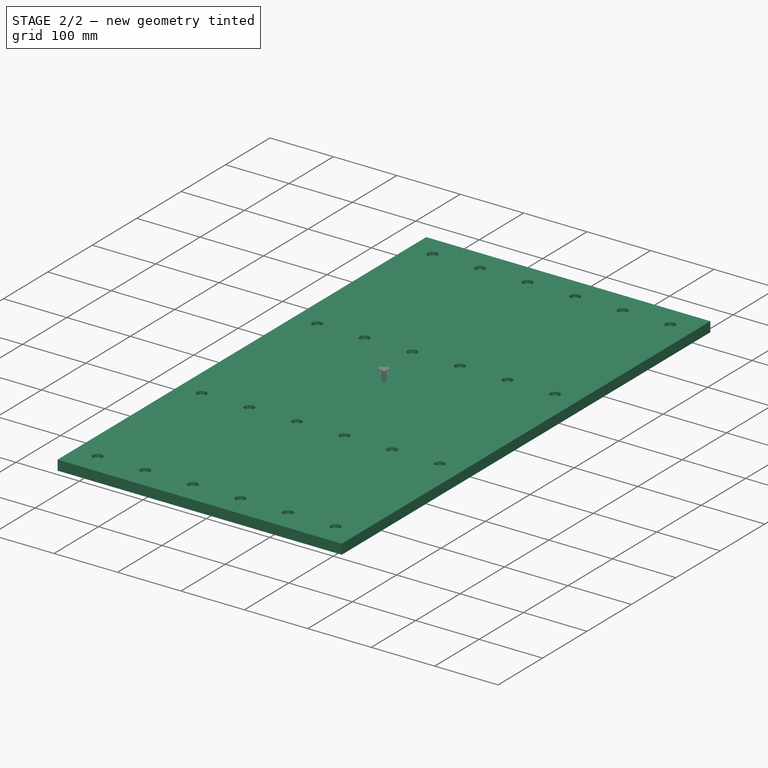
[diagram: stage 2 of 2 — iso view after this stage's code; geometry added in this stage tinted green]
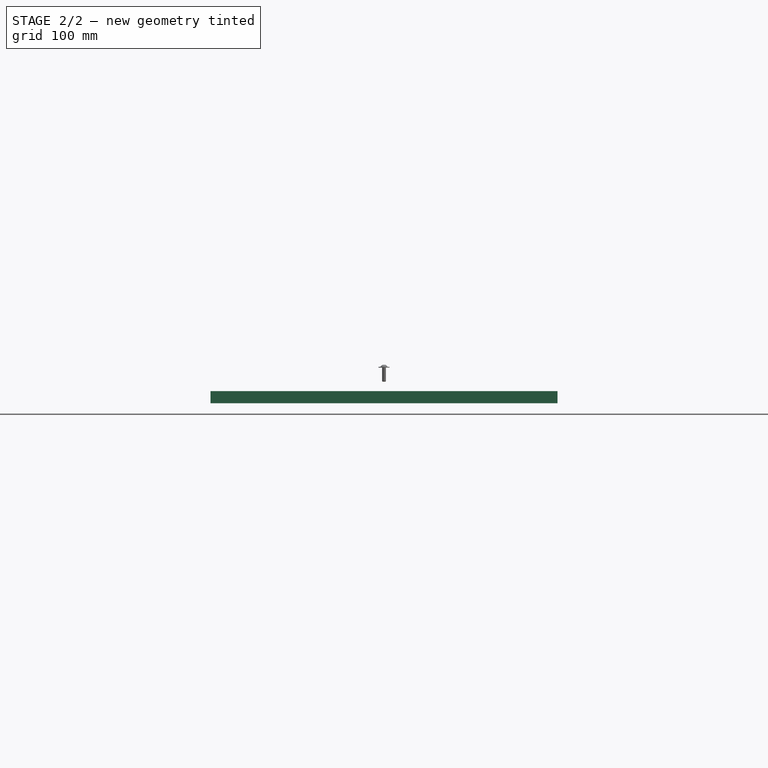
[diagram: stage 2 of 2 — front view after this stage's code; geometry added in this stage tinted green]
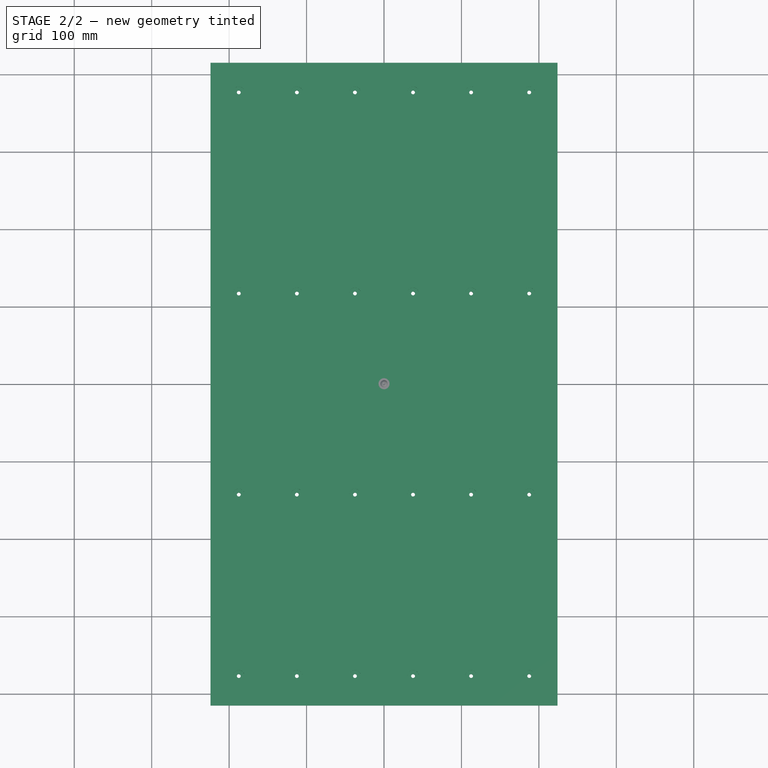
[diagram: stage 2 of 2 — top view after this stage's code; geometry added in this stage tinted green]
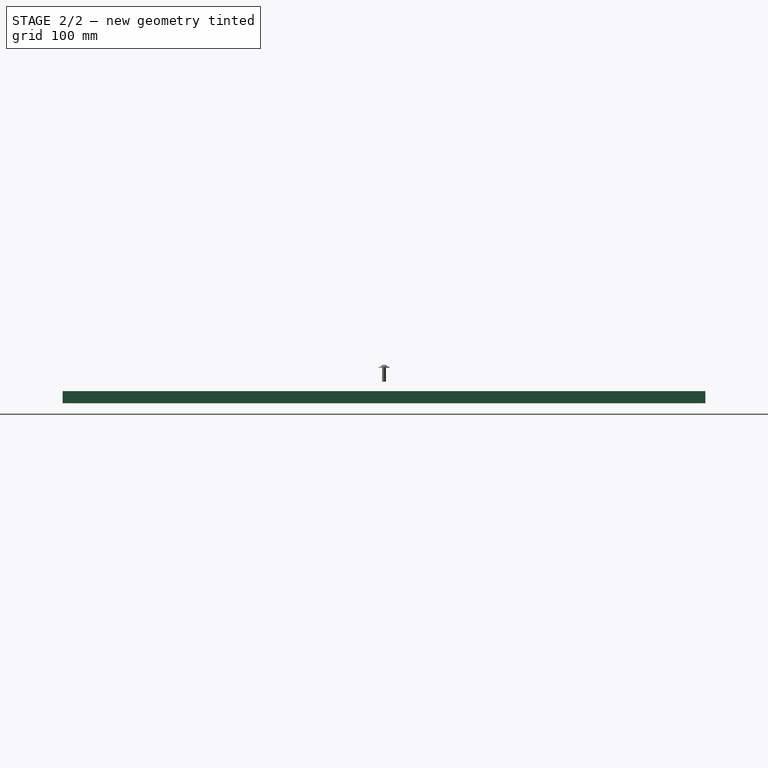
[diagram: stage 2 of 2 — right view after this stage's code; geometry added in this stage tinted green]
FEATURE [Sketcher::SketchObject] Sketch
  FullyConstrained = true
  MapMode = 5
  Support = -> [XY_Plane]
  sketch-geometry (4):
    g0: LineSegment StartX=-224 StartY=415 StartZ=0 EndX=224 EndY=415 EndZ=0
    g1: LineSegment StartX=224 StartY=415 StartZ=0 EndX=224 EndY=-415 EndZ=0
    g2: LineSegment StartX=224 StartY=-415 StartZ=0 EndX=-224 EndY=-415 EndZ=0
    g3: LineSegment StartX=-224 StartY=-415 StartZ=0 EndX=-224 EndY=415 EndZ=0
  constraints (11):
    c: Coincident(g0,g1)
    c: Coincident(g1,g2)
    c: Coincident(g2,g3)
    c: Coincident(g3,g0)
    c: Horizontal(g0)
    c: Horizontal(g2)
    c: Vertical(g1)
    c: Vertical(g3)
    c: Symmetric(g1,g0,g-1)
    c: DistanceX(g0,g0) = 448
    c: DistanceY(g3,g3) = 830
FEATURE [PartDesign::Pad] Pad
  ClaimChildren = false
  Direction = (1,1,1)
  Fit = 0
  FitJoin = 0
  InnerFit = 0
  InnerFitJoin = 0
  InnerTaperAngle = 0
  InnerTaperAngleRev = 0
  Length = 15.7
  Length2 = 100
  Linearize = true
  NewSolid = false
  Profile = -> Sketch
  Refine = true
  Suppress = false
  Type = 0
  _ProfileBasedVersion = 0
FEATURE [Sketcher::SketchObject] Sketch001
  ExternalGeometry = -> [Pad]
  FullyConstrained = false
  MapMode = 5
  Placement = pos=(0,0,15.7) rot=(0,0,1;0rad)
  Support = -> [Pad]
  sketch-geometry (46):
    g0: Circle CenterX=-187.5 CenterY=376.9 CenterZ=0 NormalX=0 NormalY=0 NormalZ=1 AngleXU=0 Radius=2.5
    g1: Circle CenterX=187.5 CenterY=376.9 CenterZ=0 NormalX=0 NormalY=0 NormalZ=1 AngleXU=0 Radius=2.5
    g2: Circle CenterX=-112.5 CenterY=376.9 CenterZ=0 NormalX=0 NormalY=0 NormalZ=1 AngleXU=0 Radius=2.5
    g3: Circle CenterX=-37.5 CenterY=376.9 CenterZ=0 NormalX=0 NormalY=0 NormalZ=1 AngleXU=0 Radius=2.5
    g4: Circle CenterX=37.5 CenterY=376.9 CenterZ=0 NormalX=0 NormalY=0 NormalZ=1 AngleXU=0 Radius=2.5
    g5: Circle CenterX=112.5 CenterY=376.9 CenterZ=0 NormalX=0 NormalY=0 NormalZ=1 AngleXU=0 Radius=2.5
    g6: LineSegment [constr] StartX=-187.5 StartY=376.9 StartZ=0 EndX=-112.5 EndY=376.9 EndZ=0
    g7: LineSegment [constr] StartX=-112.5 StartY=376.9 StartZ=0 EndX=-37.5 EndY=376.9 EndZ=0
    g8: LineSegment [constr] StartX=-37.5 StartY=376.9 StartZ=0 EndX=37.5 EndY=376.9 EndZ=0
    g9: LineSegment [constr] StartX=37.5 StartY=376.9 StartZ=0 EndX=112.5 EndY=376.9 EndZ=0
    g10: LineSegment [constr] StartX=112.5 StartY=376.9 StartZ=0 EndX=187.5 EndY=376.9 EndZ=0
    g11: Circle CenterX=-187.5 CenterY=-376.9 CenterZ=0 NormalX=0 NormalY=0 NormalZ=1 AngleXU=0 Radius=2.5
    g12: Circle CenterX=187.5 CenterY=-376.9 CenterZ=0 NormalX=0 NormalY=0 NormalZ=1 AngleXU=0 Radius=2.5
    g13: Circle CenterX=-112.5 CenterY=-376.9 CenterZ=0 NormalX=0 NormalY=0 NormalZ=1 AngleXU=0 Radius=2.5
    g14: Circle CenterX=-37.5 CenterY=-376.9 CenterZ=0 NormalX=0 NormalY=0 NormalZ=1 AngleXU=0 Radius=2.5
    g15: Circle CenterX=37.5 CenterY=-376.9 CenterZ=0 NormalX=0 NormalY=0 NormalZ=1 AngleXU=0 Radius=2.5
    g16: Circle CenterX=112.5 CenterY=-376.9 CenterZ=0 NormalX=0 NormalY=0 NormalZ=1 AngleXU=0 Radius=2.5
    g17: LineSegment [constr] StartX=-187.5 StartY=-376.9 StartZ=0 EndX=-112.5 EndY=-376.9 EndZ=0
    g18: LineSegment [constr] StartX=-112.5 StartY=-376.9 StartZ=0 EndX=-37.5 EndY=-376.9 EndZ=0
    g19: LineSegment [constr] StartX=-37.5 StartY=-376.9 StartZ=0 EndX=37.5 EndY=-376.9 EndZ=0
    g20: LineSegment [constr] StartX=37.5 StartY=-376.9 StartZ=0 EndX=112.5 EndY=-376.9 EndZ=0
    g21: LineSegment [constr] StartX=112.5 StartY=-376.9 StartZ=0 EndX=187.5 EndY=-376.9 EndZ=0
    g22: Circle CenterX=-187.5 CenterY=117.165 CenterZ=0 NormalX=0 NormalY=0 NormalZ=1 AngleXU=0 Radius=2.5
    g23: Circle CenterX=187.5 CenterY=117.165 CenterZ=0 NormalX=0 NormalY=0 NormalZ=1 AngleXU=0 Radius=2.5
    g24: Circle CenterX=-112.5 CenterY=117.165 CenterZ=0 NormalX=0 NormalY=0 NormalZ=1 AngleXU=0 Radius=2.5
    g25: Circle CenterX=-37.5 CenterY=117.165 CenterZ=0 NormalX=0 NormalY=0 NormalZ=1 AngleXU=0 Radius=2.5
    g26: Circle CenterX=37.5 CenterY=117.165 CenterZ=0 NormalX=0 NormalY=0 NormalZ=1 AngleXU=0 Radius=2.5
    g27: Circle CenterX=112.5 CenterY=117.165 CenterZ=0 NormalX=0 NormalY=0 NormalZ=1 AngleXU=0 Radius=2.5
    g28: LineSegment [constr] StartX=-187.5 StartY=117.165 StartZ=0 EndX=-112.5 EndY=117.165 EndZ=0
    g29: LineSegment [constr] StartX=-112.5 StartY=117.165 StartZ=0 EndX=-37.5 EndY=117.165 EndZ=0
    g30: LineSegment [constr] StartX=-37.5 StartY=117.165 StartZ=0 EndX=37.5 EndY=117.165 EndZ=0
    g31: LineSegment [constr] StartX=37.5 StartY=117.165 StartZ=0 EndX=112.5 EndY=117.165 EndZ=0
    g32: LineSegment [constr] StartX=112.5 StartY=117.165 StartZ=0 EndX=187.5 EndY=117.165 EndZ=0
    g33: Circle CenterX=-187.5 CenterY=-142.57 CenterZ=0 NormalX=0 NormalY=0 NormalZ=1 AngleXU=0 Radius=2.5
    g34: Circle CenterX=187.5 CenterY=-142.57 CenterZ=0 NormalX=0 NormalY=0 NormalZ=1 AngleXU=0 Radius=2.5
    g35: Circle CenterX=-112.5 CenterY=-142.57 CenterZ=0 NormalX=0 NormalY=0 NormalZ=1 AngleXU=0 Radius=2.5
    g36: Circle CenterX=-37.5 CenterY=-142.57 CenterZ=0 NormalX=0 NormalY=0 NormalZ=1 AngleXU=0 Radius=2.5
    g37: Circle CenterX=37.5 CenterY=-142.57 CenterZ=0 NormalX=0 NormalY=0 NormalZ=1 AngleXU=0 Radius=2.5
    g38: Circle CenterX=112.5 CenterY=-142.57 CenterZ=0 NormalX=0 NormalY=0 NormalZ=1 AngleXU=0 Radius=2.5
    g39: LineSegment [constr] StartX=-187.5 StartY=-142.57 StartZ=0 EndX=-112.5 EndY=-142.57 EndZ=0
    g40: LineSegment [constr] StartX=-112.5 StartY=-142.57 StartZ=0 EndX=-37.5 EndY=-142.57 EndZ=0
    g41: LineSegment [constr] StartX=-37.5 StartY=-142.57 StartZ=0 EndX=37.5 EndY=-142.57 EndZ=0
    g42: LineSegment [constr] StartX=37.5 StartY=-142.57 StartZ=0 EndX=112.5 EndY=-142.57 EndZ=0
    g43: LineSegment [constr] StartX=112.5 StartY=-142.57 StartZ=0 EndX=187.5 EndY=-142.57 EndZ=0
    g44: LineSegment [constr] StartX=187.5 StartY=376.9 StartZ=0 EndX=187.5 EndY=117.165 EndZ=0
    g45: LineSegment [constr] StartX=187.5 StartY=-142.57 StartZ=0 EndX=187.5 EndY=117.165 EndZ=0
  constraints (113):
    c: Diameter(g0) = 5
    c: Symmetric(g0,g1,g-2)
    c: Equal(g0,g1)
    c: Horizontal(g5,g4)
    c: Horizontal(g4,g3)
    c: Horizontal(g3,g2)
    c: Horizontal(g2,g1)
    c: Equal(g2,g0)
    c: Equal(g0,g3)
    c: Equal(g3,g4)
    c: Equal(g4,g5)
    c: Coincident(g6,g0)
    c: Coincident(g6,g2)
    c: Coincident(g7,g2)
    c: Coincident(g7,g3)
    c: Coincident(g8,g3)
    c: Coincident(g8,g4)
    c: Coincident(g9,g4)
    c: Coincident(g9,g5)
    c: Coincident(g10,g5)
    c: Coincident(g10,g1)
    c: Equal(g10,g9)
    c: Equal(g9,g8)
    c: Equal(g8,g7)
    c: Equal(g7,g6)
    c: DistanceX(g6,g6) = 75
    c: DistanceY(g0,g-3) = 38.1
    c: Equal(g0,g11) = 5
    c: Equal(g11,g12)
    c: Horizontal(g16,g15)
    c: Horizontal(g15,g14)
    c: Horizontal(g14,g13)
    c: Horizontal(g13,g12)
    c: Equal(g13,g11)
    c: Equal(g11,g14)
    c: Equal(g14,g15)
    c: Equal(g15,g16)
    c: Coincident(g17,g11)
    c: Coincident(g17,g13)
    c: Coincident(g18,g13)
    c: Coincident(g18,g14)
    c: Coincident(g19,g14)
    c: Coincident(g19,g15)
    c: Coincident(g20,g15)
    c: Coincident(g20,g16)
    c: Coincident(g21,g16)
    c: Coincident(g21,g12)
    c: Equal(g21,g20)
    c: Equal(g20,g19)
    c: Equal(g19,g18)
    c: Equal(g18,g17)
    c: Equal(g0,g22) = 5
    c: Equal(g22,g23)
    c: Horizontal(g27,g26)
    c: Horizontal(g26,g25)
    c: Horizontal(g25,g24)
    c: Horizontal(g24,g23)
    c: Equal(g24,g22)
    c: Equal(g22,g25)
    c: Equal(g25,g26)
    c: Equal(g26,g27)
    c: Coincident(g28,g22)
    c: Coincident(g28,g24)
    c: Coincident(g29,g24)
    c: Coincident(g29,g25)
    c: Coincident(g30,g25)
    c: Coincident(g30,g26)
    c: Coincident(g31,g26)
    c: Coincident(g31,g27)
    c: Coincident(g32,g27)
    c: Coincident(g32,g23)
    c: Equal(g32,g31)
    c: Equal(g31,g30)
    c: Equal(g30,g29)
    c: Equal(g29,g28)
    c: Equal(g6,g28) = 75
    c: Equal(g33,g34)
    c: Horizontal(g38,g37)
    c: Horizontal(g37,g36)
    c: Horizontal(g36,g35)
    c: Horizontal(g35,g34)
    c: Equal(g35,g33)
    c: Equal(g33,g36)
    c: Equal(g36,g37)
    c: Equal(g37,g38)
    c: Coincident(g39,g33)
    c: Coincident(g39,g35)
    c: Coincident(g40,g35)
    c: Coincident(g40,g36)
    c: Coincident(g41,g36)
    c: Coincident(g41,g37)
    c: Coincident(g42,g37)
    c: Coincident(g42,g38)
    c: Coincident(g43,g38)
    c: Coincident(g43,g34)
    c: Equal(g43,g42)
    c: Equal(g42,g41)
    c: Equal(g41,g40)
    c: Equal(g40,g39)
    c: Vertical(g11,g33)
    c: Vertical(g33,g22)
    c: Symmetric(g11,g0,g-1)
    c: Horizontal(g39)
    c: Horizontal(g28)
    c: DistanceY(g34,g1) = 519.47
    c: Coincident(g44,g1)
    c: Coincident(g44,g23)
    c: Coincident(g45,g34)
    c: Coincident(g45,g23)
    c: Vertical(g45)
    c: Symmetric(g12,g11,g-2)
    c: Equal(g45,g44)
    c: DistanceX(g-3,g0) = 36.5
FEATURE [App::Link] Link001  label="Link001(Table plate PP)"
  AutoLinkLabel = true
  AutoPlacement = true
  LinkedObject = -> Body
  SyncGroupVisibility = false
  _LinkVersion = 1
FEATURE [PartDesign::Hole] Hole
  BaseFeature = -> Pad
  ClaimChildren = false
  CustomThreadClearance = 0
  Depth = 25
  DepthType = 0
  Diameter = 5
  DrillForDepth = false
  DrillPoint = 1
  DrillPointAngle = 118
  Fit = 0
  FitJoin = 0
  HoleCutCountersinkAngle = 90
  HoleCutCustomValues = false
  HoleCutDepth = 5
  HoleCutDiameter = 15
  HoleCutType = 1
  InnerFit = 0
  InnerFitJoin = 0
  ModelThread = false
  NewSolid = false
  Profile = -> Sketch001
  Refine = true
  Suppress = false
  Tapered = false
  TaperedAngle = 90
  ThreadClass = 0
  ThreadDepth = 23.5
  ThreadDepthType = 0
  ThreadDirection = 0
  ThreadFit = 0
  ThreadSize = 0
  ThreadType = 0
  Threaded = false
  UseCustomThreadClearance = false
  _ProfileBasedVersion = 0
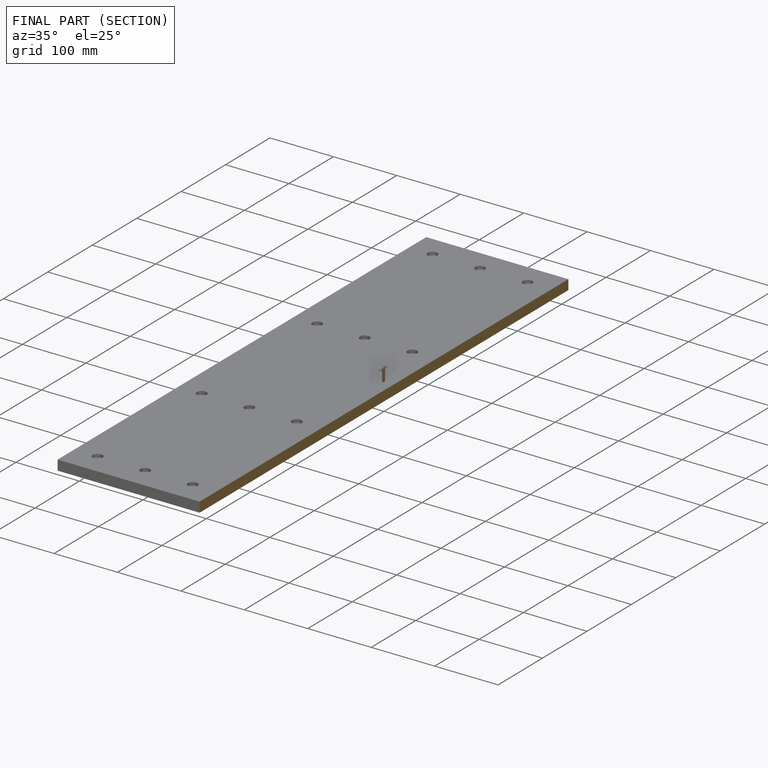
[diagram: finished part — half-section view (interior)]
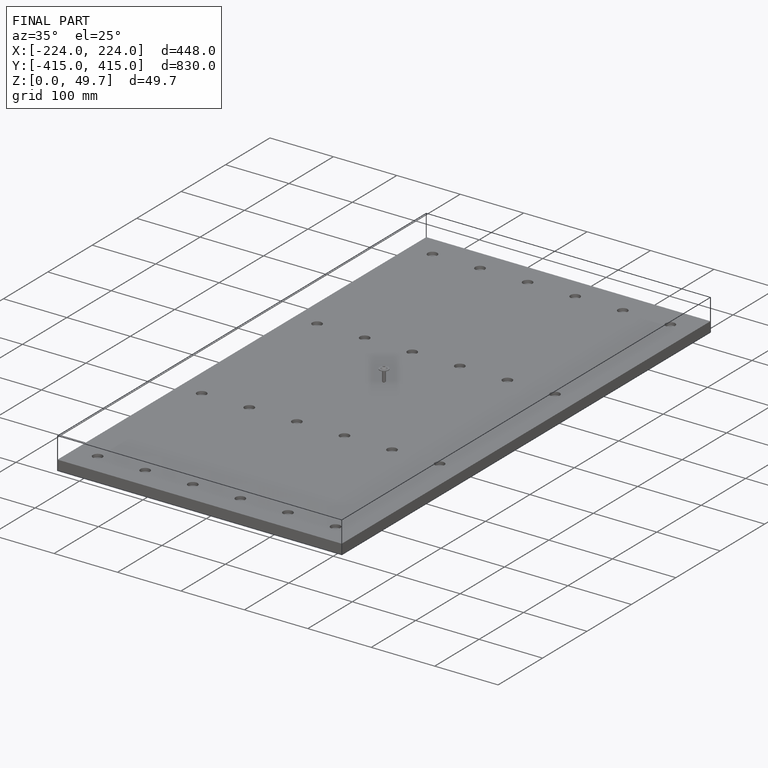
[diagram: finished part — iso view with bounding-box wireframe]
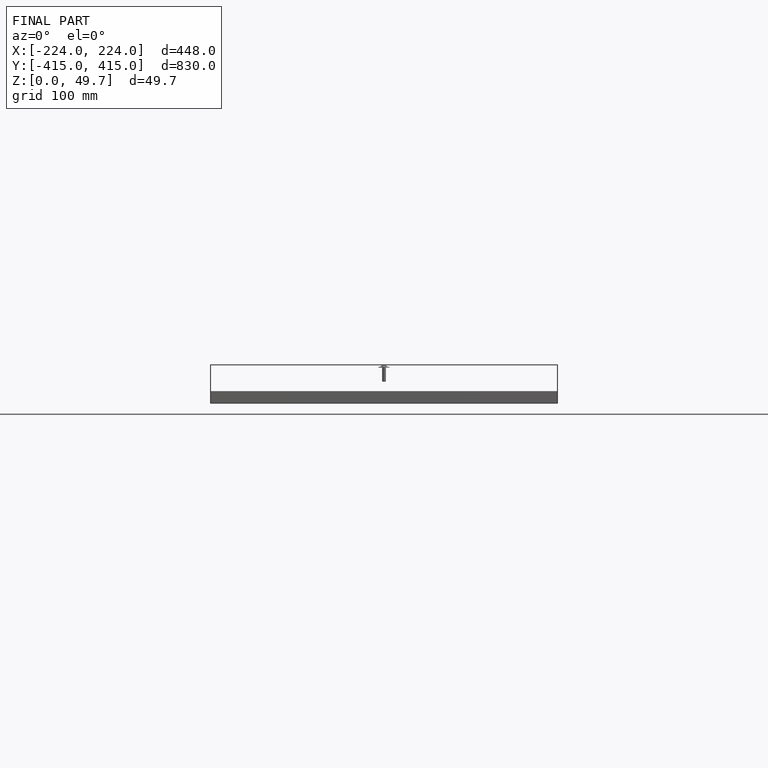
[diagram: finished part — front view with bounding-box wireframe]
